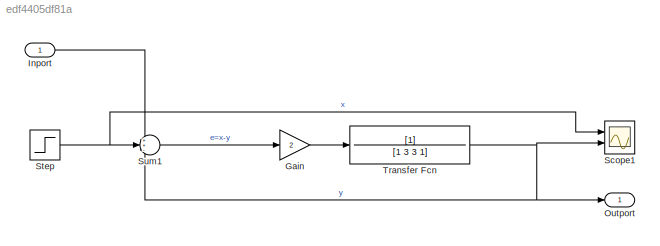
MODEL slx_edf4405df81a
KIND model
CONFIG AbsTol = auto
CONFIG EnableMultiTasking = on
CONFIG FixedStep = auto
CONFIG MaxStep = 0.01
CONFIG MinStep = auto
CONFIG RelTol = 1e-4
CONFIG SampleTimeConstraint = Unconstrained
CONFIG Solver = VariableStepAuto
CONFIG SolverName = VariableStepAuto
CONFIG StartTime = 0.0
CONFIG StopTime = 10
BLOCK [Gain] Gain
  AttributesFormatString = Gain
  Description = Wzmocnienie sygnalu
  Gain = 2
  OutDataTypeStr = Inherit: Inherit via internal rule
  ParamDataTypeStr = Inherit: Inherit via internal rule
  SaturateOnIntegerOverflow = off
BLOCK [Inport] Inport
  AttributesFormatString = Inport
  Description = Wywolanie funkcji w Command Window
  IconDisplay = Port number
BLOCK [Outport] Outport
  AttributesFormatString = Outport
  Description = Wyniki funkcji Matlaba w Command Window
  IconDisplay = Port number
BLOCK [Scope] Scope1
  AttributesFormatString = Scope
  Description = Przebiegi x(t), y(t)
  Floating = off
  NumInputPorts = 2
  Ports = [2]
  ScopeSpecificationString = Simulink.scopes.TimeScopeBlockCfg('CurrentConfiguration', extmgr.ConfigurationSet(extmgr.Configuration('Core','General UI',true,'DisplayFullSourceName',true),extmgr.Configuration('Core','Source UI',true),extmgr.Configuration('Sources','WiredSimulink',true,'DataLoggingVariableName','ScopeData1'),extmgr.Configuration('Visuals','Time Domain',true,'SerializedDisplays',{struct('MinYLimReal','-0.24844',...<+1467ch>
BLOCK [Step] Step
  AttributesFormatString = Step
  Description = Skok jednostkowy
  SampleTime = 0
BLOCK [Sum] Sum1
  AttributesFormatString = Sum
  Description = Suma algebraiczna sygnalow
  IconShape = round
  InputSameDT = off
  Inputs = ++-
  OutDataTypeStr = Inherit: Inherit via internal rule
  Ports = [3, 1]
  SaturateOnIntegerOverflow = off
BLOCK [TransferFcn] Transfer Fcn
  AttributesFormatString = Transfer Fcn
  Denominator = [1 3 3 1]
  Description = G(s)=L(s)/M(s), L-wsp. licznika, M-wsp.mainownika
LINE Gain:1 -> Transfer Fcn:1
LINE Inport:1 -> Sum1:1
NET Step:1 -> Scope1:1, Sum1:2
LINE Sum1:1 -> Gain:1
NET Transfer Fcn:1 -> Outport:1, Scope1:2, Sum1:3
note: NET lines group one-source signal fan-out (src -> all destinations, sorted); 1:1 wires keep LINE
